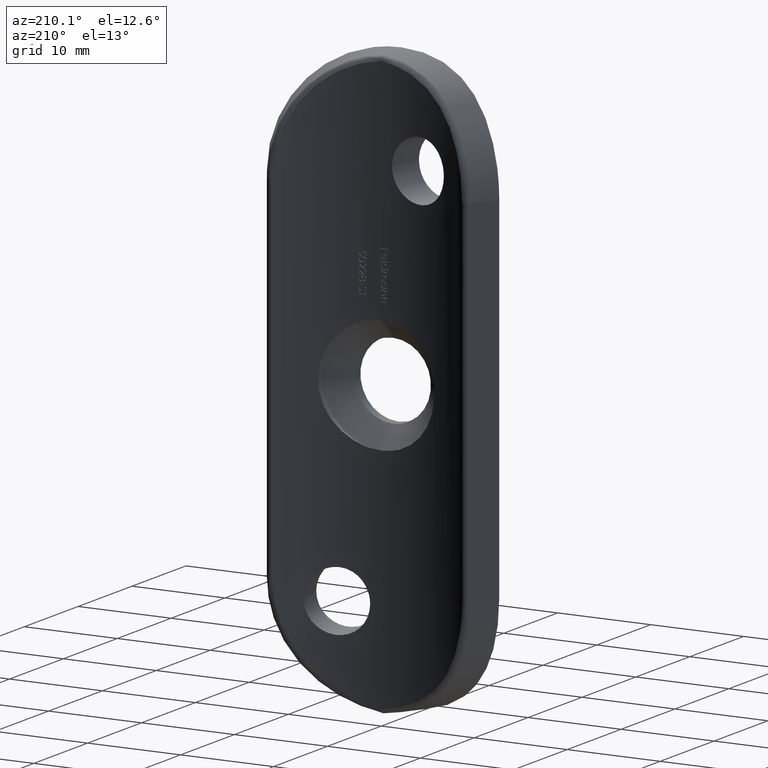
[diagram: clean part render]
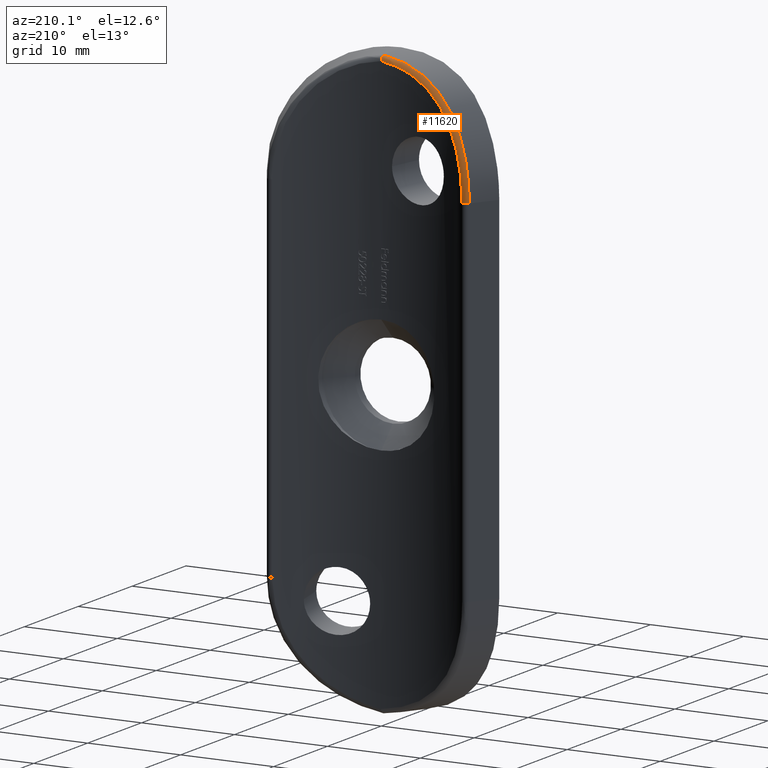
[diagram: same view with one face highlighted and labeled with its STEP entity id]
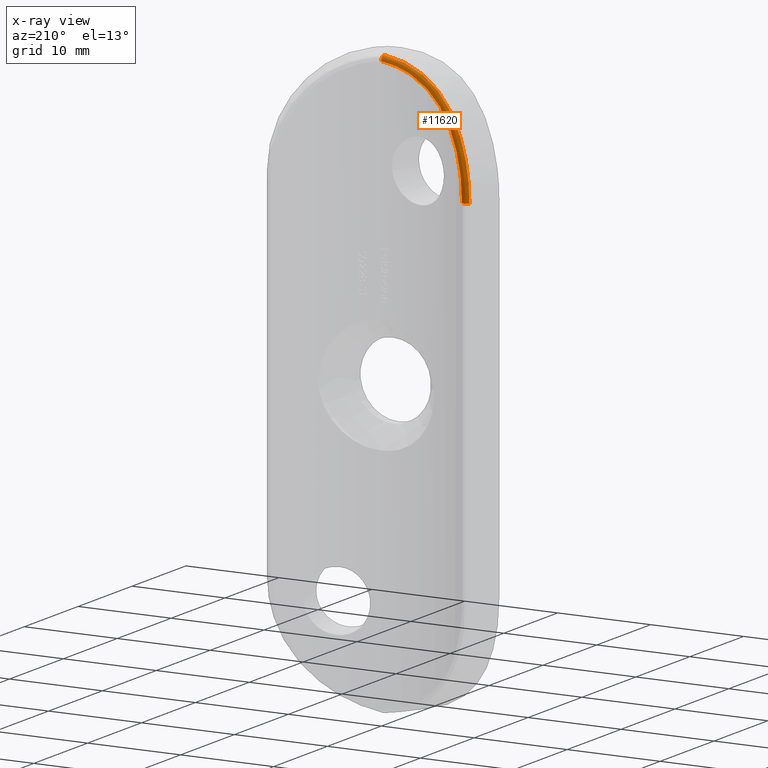
[diagram: x-ray of the same camera — body ghosted, the highlighted face saturated]
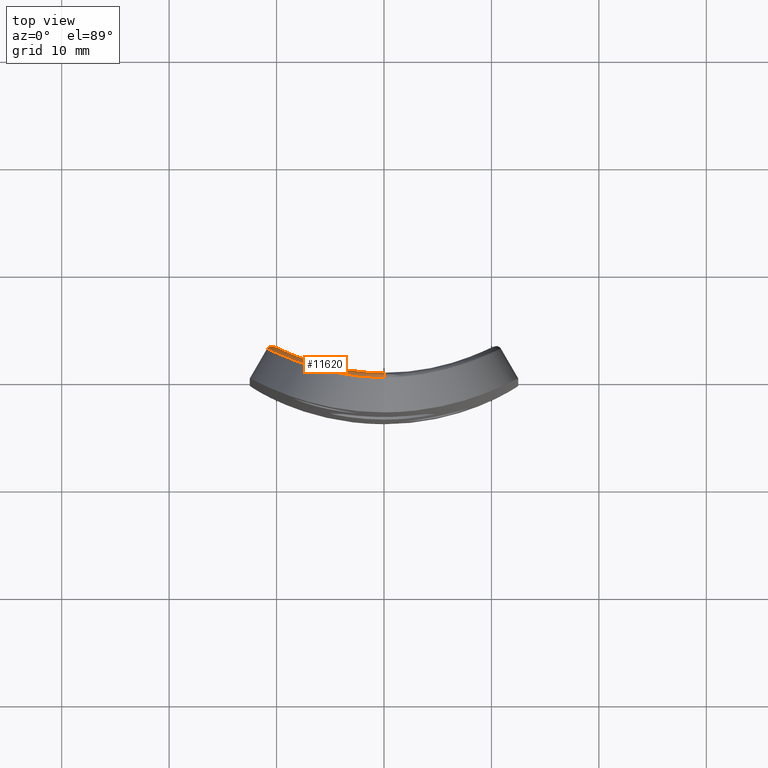
[diagram: same view with one face highlighted and labeled with its STEP entity id]
A machine part, auxiliary view. The second image highlights one B-rep face of the part: STEP entity #11620.
The next image is the same camera in x-ray: the body ghosted, the highlighted face saturated — about 0% of this face is hidden behind the body in this view.
A second angle (top view) of the same face is appended — the face is thin or edge-on in the first view.
In plain terms, the highlighted face is a freeform B-spline surface patch.
Its self-contained STEP definition (entity closure, byte-faithful):
#81 = ORIENTED_EDGE ( 'NONE', *, *, #7390, .F. ) ;
#227 = CARTESIAN_POINT ( 'NONE',  ( -3.722145375514098298, -0.1174825666102539967, 30.47237530460908417 ) ) ;
#275 = CARTESIAN_POINT ( 'NONE',  ( -10.37901783092901198, 2.163308026600583744, 22.78354983175704263 ) ) ;
#445 = CARTESIAN_POINT ( 'NONE',  ( -1.503143850898613252E-15, 3.436224069829925050E-16, 30.89198875131268451 ) ) ;
#543 = CARTESIAN_POINT ( 'NONE',  ( -10.82693343063659341, 2.401948766275856073, 20.55405604948338549 ) ) ;
#588 = CARTESIAN_POINT ( 'NONE',  ( -10.02261743220257451, 2.512910916866462507, 23.17907758015127584 ) ) ;
#628 = CARTESIAN_POINT ( 'NONE',  ( -10.15746312489223513, 2.591294358397929543, 20.49189380751278122 ) ) ;
#641 = EDGE_CURVE ( 'NONE', #11333, #8715, #2920, .T. ) ;
#662 = CARTESIAN_POINT ( 'NONE',  ( -10.25817238834203771, 2.100752320882434354, 23.18812462550034681 ) ) ;
#753 = CARTESIAN_POINT ( 'NONE',  ( -2.692327934985106364, 0.1597469888033946350, 30.30886090248851872 ) ) ;
#789 = CARTESIAN_POINT ( 'NONE',  ( -2.856489271856744061, 0.1815265113550678933, 30.25138734213638614 ) ) ;
#793 = CARTESIAN_POINT ( 'NONE',  ( -8.800024627547966105, 1.415012905178085090, 26.26619665723578478 ) ) ;
#830 = CARTESIAN_POINT ( 'NONE',  ( -9.989693022126974853, 2.501064609912782899, 21.53379502615787189 ) ) ;
#1213 = CARTESIAN_POINT ( 'NONE',  ( -9.035279559040494846, 1.517712944394773444, 25.89464071519139665 ) ) ;
#1257 = CARTESIAN_POINT ( 'NONE',  ( -8.404436157681665520, 1.249794867364261375, 26.82734984694793567 ) ) ;
#1518 = VERTEX_POINT ( 'NONE', #6655 ) ;
#1528 = CARTESIAN_POINT ( 'NONE',  ( -10.36996869859718728, 2.158599876781150506, 22.81585598824631234 ) ) ;
#1563 = CARTESIAN_POINT ( 'NONE',  ( -9.623542404332077638, 2.309654094659579382, 23.02059964041551865 ) ) ;
#1599 = CARTESIAN_POINT ( 'NONE',  ( -9.002973551663066232, 1.503446562005154474, 25.94765520731066744 ) ) ;
#1649 = CARTESIAN_POINT ( 'NONE',  ( -8.444089052977842513, 1.753289955697156621, 25.66974899898917073 ) ) ;
#1707 = CARTESIAN_POINT ( 'NONE',  ( -10.45825068306286454, 2.186452391775617787, 19.00000000000000000 ) ) ;
#1728 = CARTESIAN_POINT ( 'NONE',  ( -7.206757277130022565, 1.253595423490915017, 27.98860149675175535 ) ) ;
#1776 = CARTESIAN_POINT ( 'NONE',  ( -7.930695614902022683, 1.534729950710860935, 27.14843793214010503 ) ) ;
#1822 = CARTESIAN_POINT ( 'NONE',  ( -5.792786975466312605, 0.8030550184246234569, 29.17530994676620537 ) ) ;
#1859 = CARTESIAN_POINT ( 'NONE',  ( -9.018691429142190685, 2.010346234419009726, 24.62831743509421401 ) ) ;
#1865 = CARTESIAN_POINT ( 'NONE',  ( -0.6245340637685583562, -0.003585828924224231107, 31.28678022020730509 ) ) ;
#1906 = CARTESIAN_POINT ( 'NONE',  ( -1.412695242634778525, -0.4146772152786631915, 31.18679807518965674 ) ) ;
#2213 = CARTESIAN_POINT ( 'NONE',  ( -9.587749169269603300, 1.767324810813492686, 24.91827199489953415 ) ) ;
#2263 = CARTESIAN_POINT ( 'NONE',  ( -10.64252913189476679, 2.302479216670972662, 21.66950056038004391 ) ) ;
#2310 = CARTESIAN_POINT ( 'NONE',  ( -1.904176963450266769, -0.3623903095538353880, 31.05567707528684096 ) ) ;
#2521 = CARTESIAN_POINT ( 'NONE',  ( -9.266406216622645076, 2.130530601139056124, 24.06490579535720187 ) ) ;
#2689 = EDGE_LOOP ( 'NONE', ( #3150, #6288, #81, #8791 ) ) ;
#2734 = CARTESIAN_POINT ( 'NONE',  ( -6.406820660472107853, 0.9827181688997839171, 28.16273352284340703 ) ) ;
#2767 = CARTESIAN_POINT ( 'NONE',  ( -0.3658014390068305421, 1.407956987880481869E-15, 30.84824432416816364 ) ) ;
#2773 = CARTESIAN_POINT ( 'NONE',  ( -4.524538399175421333, 0.4847480634760920060, 29.96485310425074289 ) ) ;
#2812 = CARTESIAN_POINT ( 'NONE',  ( 0.1086331031631292271, 0.0002204369200916266285, 31.37724488065303063 ) ) ;
#2837 = VERTEX_POINT ( 'NONE', #5321 ) ;
#2855 = CARTESIAN_POINT ( 'NONE',  ( -1.805813223455826400, 0.07411591695461527962, 30.55856797363939137 ) ) ;
#2858 = CARTESIAN_POINT ( 'NONE',  ( -2.824709625130831014, 0.1760599917598440756, 30.72574562605015558 ) ) ;
#2902 = CARTESIAN_POINT ( 'NONE',  ( -4.483335441154521206, 0.4769306136709096089, 29.49993748818632611 ) ) ;
#2920 = B_SPLINE_CURVE_WITH_KNOTS ( 'NONE', 3,
 ( #4306, #6303, #12173, #4181, #2310, #9256, #227, #3364, #4341, #6213, #10252, #11255, #9174, #3275, #1257, #8183, #1213, #2213, #6168, #9095, #275, #7186, #2263, #11128, #10171, #12092 ),
 .UNSPECIFIED., .F., .F.,
 ( 4, 2, 2, 2, 2, 2, 2, 2, 2, 2, 2, 2, 4 ),
 ( 0.000000000000000000, 0.001161208984453286630, 0.002322417968906574995, 0.004644835937813149990, 0.005806044922266438355, 0.006967253906719727587, 0.009289671875626308653, 0.01045088086007959528, 0.01161208984453288018, 0.01393450781343945517, 0.01509571679789274007, 0.01625692578234602323, 0.01857934375125259302 ),
 .UNSPECIFIED. ) ;
#3150 = ORIENTED_EDGE ( 'NONE', *, *, #7189, .T. ) ;
#3275 = CARTESIAN_POINT ( 'NONE',  ( -8.172666840697736745, 1.156575065583176132, 27.12569061865148257 ) ) ;
#3364 = CARTESIAN_POINT ( 'NONE',  ( -4.735884520321929969, 0.09562791914021957773, 29.97130340277395177 ) ) ;
#3465 = CARTESIAN_POINT ( 'NONE',  ( -10.89068216193508576, 2.437456407839875272, 19.00000000000000000 ) ) ;
#3587 = CARTESIAN_POINT ( 'NONE',  ( -8.790146387079809998, 1.903471252957630755, 25.92233981367275675 ) ) ;
#3676 = CARTESIAN_POINT ( 'NONE',  ( -1.371271148152504837, 0.03144070256317526429, 31.14173367239112267 ) ) ;
#3718 = CARTESIAN_POINT ( 'NONE',  ( -4.640317153406376960, 0.07421539640497315515, 30.02191814785297908 ) ) ;
#3737 = DIRECTION ( 'NONE',  ( 0.000000000000000000, 0.000000000000000000, -1.000000000000000000 ) ) ;
#3807 = CARTESIAN_POINT ( 'NONE',  ( -3.367140335890878688, 0.2588199023110353547, 30.05539905303928450 ) ) ;
#3842 = CARTESIAN_POINT ( 'NONE',  ( -1.503143850898613252E-15, 3.436224069829925050E-16, 30.89198875131268451 ) ) ;
#3881 = CARTESIAN_POINT ( 'NONE',  ( -9.302536356113341398, 2.148258411087696107, 23.97361021490491240 ) ) ;
#3925 = CARTESIAN_POINT ( 'NONE',  ( -8.507335449680526906, 1.780933461392925077, 25.56317099932303449 ) ) ;
#4181 = CARTESIAN_POINT ( 'NONE',  ( -1.526829681125244198, -0.3965501718721306523, 31.14486316553924894 ) ) ;
#4306 = CARTESIAN_POINT ( 'NONE',  ( 1.149669547333050099E-15, -0.4673406116063780757, 31.39421042555791530 ) ) ;
#4341 = CARTESIAN_POINT ( 'NONE',  ( -5.065702197598429990, 0.1728216056635637488, 29.78806897644023621 ) ) ;
#4447 = CARTESIAN_POINT ( 'NONE',  ( -10.63817365423436456, 2.300142372996860196, 21.69249099678065917 ) ) ;
#4502 =( BOUNDED_SURFACE ( )  B_SPLINE_SURFACE ( 3, 2, ( 
 ( #3465, #11477, #12389 ),
 ( #6575, #6526, #10361 ),
 ( #543, #5610, #628 ),
 ( #4447, #7626, #5486 ),
 ( #8444, #6619, #12346 ),
 ( #1528, #9486, #6452 ),
 ( #662, #588, #1563 ),
 ( #5439, #11436, #2521 ),
 ( #7547, #12312, #7588 ),
 ( #1599, #3587, #1649 ),
 ( #793, #7852, #7719 ),
 ( #5658, #5829, #9567 ),
 ( #7672, #1776, #10655 ),
 ( #7802, #1728, #9731 ),
 ( #8648, #6839, #2734 ),
 ( #11685, #1822, #6658 ),
 ( #9690, #4754, #11728 ),
 ( #6705, #8682, #11598 ),
 ( #3718, #2773, #12516 ),
 ( #10699, #8726, #3807 ),
 ( #4710, #2858, #753 ),
 ( #1906, #3676, #4830 ),
 ( #4656, #1865, #5735 ),
 ( #5695, #2812, #4788 ) ),
 .UNSPECIFIED., .F., .F., .T. ) 
 B_SPLINE_SURFACE_WITH_KNOTS ( ( 4, 2, 2, 2, 2, 2, 2, 2, 2, 2, 2, 4 ),
 ( 3, 3 ),
 ( 0.000000000000000000, 0.002223879156777140102, 0.003335818735165710369, 0.004447758313554280203, 0.006671637470331420738, 0.007783577048719990572, 0.008895516627108560406, 0.01111939578388570007, 0.01223133536227427078, 0.01334327494066284148, 0.01556715409743998114, 0.01779103325421712081 ),
 ( 0.000000000000000000, 1.000000000000000000 ),
 .UNSPECIFIED. ) 
 GEOMETRIC_REPRESENTATION_ITEM ( )  RATIONAL_B_SPLINE_SURFACE ( (
 ( 1.000000000000000000, 0.7152067794192036310, 1.000000000000000000),
 ( 1.000000000000000000, 0.7152026555542936315, 1.000000000000000000),
 ( 1.000000000000000000, 0.7163087218244311716, 1.000000000000000000),
 ( 1.000000000000000000, 0.7193575847382822630, 1.000000000000000000),
 ( 1.000000000000000000, 0.7206045121275554965, 1.000000000000000000),
 ( 1.000000000000000000, 0.7234917940115832558, 1.000000000000000000),
 ( 1.000000000000000000, 0.7251422474811400898, 1.000000000000000000),
 ( 1.000000000000000000, 0.7304542732207562894, 1.000000000000000000),
 ( 1.000000000000000000, 0.7344810157246716154, 1.000000000000000000),
 ( 1.000000000000000000, 0.7404940515638996912, 1.000000000000000000),
 ( 1.000000000000000000, 0.7424932332932062673, 1.000000000000000000),
 ( 1.000000000000000000, 0.7463409901879426434, 1.000000000000000000),
 ( 1.000000000000000000, 0.7481787648772402211, 1.000000000000000000),
 ( 1.000000000000000000, 0.7531368888692631103, 1.000000000000000000),
 ( 1.000000000000000000, 0.7557433133660209634, 1.000000000000000000),
 ( 1.000000000000000000, 0.7578513671500343163, 1.000000000000000000),
 ( 1.000000000000000000, 0.7582532660983138939, 1.000000000000000000),
 ( 1.000000000000000000, 0.7583231197191486750, 1.000000000000000000),
 ( 1.000000000000000000, 0.7579947729588659699, 1.000000000000000000),
 ( 1.000000000000000000, 0.7558344869759966445, 1.000000000000000000),
 ( 1.000000000000000000, 0.7528277530502420767, 1.000000000000000000),
 ( 1.000000000000000000, 0.7432499818475333253, 1.000000000000000000),
 ( 1.000000000000000000, 0.7367541512354522926, 1.000000000000000000),
 ( 1.000000000000000000, 0.7287472103858306793, 1.000000000000000000) ) ) 
 REPRESENTATION_ITEM ( '' )  SURFACE ( )  );
#4656 = CARTESIAN_POINT ( 'NONE',  ( -0.6506570822281672051, -0.4609428060838244301, 31.32488532440849127 ) ) ;
#4710 = CARTESIAN_POINT ( 'NONE',  ( -2.902561889445783638, -0.2513129673027021949, 30.78006344034141506 ) ) ;
#4754 = CARTESIAN_POINT ( 'NONE',  ( -5.484793050253097491, 0.7178864050661466489, 29.38924087979324895 ) ) ;
#4783 = CARTESIAN_POINT ( 'NONE',  ( -9.747706822753684719, 2.373647788680583126, 22.59276625280698170 ) ) ;
#4787 = EDGE_CURVE ( 'NONE', #1518, #2837, #10017, .T. ) ;
#4788 = CARTESIAN_POINT ( 'NONE',  ( 0.1581763936741363841, 0.0005900971634521627596, 30.91002881888936926 ) ) ;
#4830 = CARTESIAN_POINT ( 'NONE',  ( -1.283110736329449386, 0.02703366736287738520, 30.69932615242131391 ) ) ;
#4914 = CARTESIAN_POINT ( 'NONE',  ( -8.322522062034710899, 1.700703140498017296, 25.86687294132988768 ) ) ;
#5264 = CARTESIAN_POINT ( 'NONE',  ( 1.348642466554699619E-12, -1.116389424481167847E-15, 31.01719971224632744 ) ) ;
#5321 = CARTESIAN_POINT ( 'NONE',  ( -1.503143850898613252E-15, 3.436224069829925050E-16, 30.89198875131268451 ) ) ;
#5439 = CARTESIAN_POINT ( 'NONE',  ( -9.877903268781704327, 1.908865879479665129, 24.27594353669539018 ) ) ;
#5486 = CARTESIAN_POINT ( 'NONE',  ( -9.980297429979364310, 2.496038951428444896, 21.58479135690506467 ) ) ;
#5610 = CARTESIAN_POINT ( 'NONE',  ( -10.58284720286918024, 2.823434808774624827, 20.55048473156582034 ) ) ;
#5658 = CARTESIAN_POINT ( 'NONE',  ( -8.360933311543435664, 1.232092917468072146, 26.88513091381344111 ) ) ;
#5695 = CARTESIAN_POINT ( 'NONE',  ( 0.1090529744508627469, -0.4687169864780459938, 31.40628001967643002 ) ) ;
#5735 = CARTESIAN_POINT ( 'NONE',  ( -0.5616976621041872564, -0.004781141119333885692, 30.83188913527758857 ) ) ;
#5829 = CARTESIAN_POINT ( 'NONE',  ( -8.161110873567407609, 1.629371636888111041, 26.85210269360071678 ) ) ;
#5899 = CARTESIAN_POINT ( 'NONE',  ( -6.522787611881756931, 1.020136897116859842, 28.05743873491669049 ) ) ;
#6168 = CARTESIAN_POINT ( 'NONE',  ( -9.895329955964312418, 1.917468678574771657, 24.23304662918588193 ) ) ;
#6213 = CARTESIAN_POINT ( 'NONE',  ( -5.708646956014399088, 0.3375534250088046972, 29.38719145087421580 ) ) ;
#6288 = ORIENTED_EDGE ( 'NONE', *, *, #4787, .F. ) ;
#6303 = CARTESIAN_POINT ( 'NONE',  ( -0.3857525109607254921, -0.4615508653606031353, 31.35014733435442125 ) ) ;
#6452 = CARTESIAN_POINT ( 'NONE',  ( -9.728513467866683584, 2.363702262088782202, 22.66322174867684325 ) ) ;
#6526 = CARTESIAN_POINT ( 'NONE',  ( -10.64539652685905402, 2.860036218014518905, 19.78248408817341186 ) ) ;
#6575 = CARTESIAN_POINT ( 'NONE',  ( -10.89068216192531580, 2.437456407856706697, 19.78317630828706797 ) ) ;
#6619 = CARTESIAN_POINT ( 'NONE',  ( -10.31923863127568630, 2.674818347301767929, 22.06373278200256749 ) ) ;
#6655 = CARTESIAN_POINT ( 'NONE',  ( -10.21727716501994010, 2.624552567080326693, 19.00000000000000000 ) ) ;
#6658 = CARTESIAN_POINT ( 'NONE',  ( -5.558851619202429539, 0.7396571979087462889, 28.81932357322804350 ) ) ;
#6700 = CARTESIAN_POINT ( 'NONE',  ( -1.447889428727310301, 0.04643533760782532493, 30.64614599724809096 ) ) ;
#6705 = CARTESIAN_POINT ( 'NONE',  ( -4.973601509702893608, 0.1507637063357829821, 29.84080540090397804 ) ) ;
#6750 = CARTESIAN_POINT ( 'NONE',  ( -4.794540037725573356, 0.5469161032904806818, 29.32145114474685599 ) ) ;
#6791 = CARTESIAN_POINT ( 'NONE',  ( -9.918815037941767443, 2.463233092923673873, 21.88857879488332969 ) ) ;
#6839 = CARTESIAN_POINT ( 'NONE',  ( -6.672239978941452598, 1.066132428140446287, 28.49617008436290178 ) ) ;
#7186 = CARTESIAN_POINT ( 'NONE',  ( -10.56531761606724551, 2.261153944151151229, 22.04284560907184343 ) ) ;
#7189 = EDGE_CURVE ( 'NONE', #11333, #2837, #9131, .T. ) ;
#7390 = EDGE_CURVE ( 'NONE', #8715, #1518, #10250, .T. ) ;
#7508 = CARTESIAN_POINT ( 'NONE',  ( -10.89068216193508398, 2.437456407839876160, 19.00000000000000000 ) ) ;
#7547 = CARTESIAN_POINT ( 'NONE',  ( -9.565072202388497757, 1.756490763747495798, 24.96562210051425978 ) ) ;
#7588 = CARTESIAN_POINT ( 'NONE',  ( -8.972512613868962816, 1.988474726841717999, 24.72699721655183325 ) ) ;
#7626 = CARTESIAN_POINT ( 'NONE',  ( -10.39655415191130139, 2.718138352962867987, 21.68835983927413480 ) ) ;
#7672 = CARTESIAN_POINT ( 'NONE',  ( -8.125609610752885459, 1.138012428159897560, 27.18397260105661317 ) ) ;
#7712 = CARTESIAN_POINT ( 'NONE',  ( -5.400682064243613745, 0.6970704078945602067, 28.93120263732642883 ) ) ;
#7719 = CARTESIAN_POINT ( 'NONE',  ( -8.253249010102859273, 1.671208202351837313, 25.97554879105007331 ) ) ;
#7797 = CARTESIAN_POINT ( 'NONE',  ( -7.922224594807326881, 1.534667331634883780, 26.45792131482191678 ) ) ;
#7802 = CARTESIAN_POINT ( 'NONE',  ( -7.384139858635091258, 0.8567638779313206943, 28.03372606786246024 ) ) ;
#7852 = CARTESIAN_POINT ( 'NONE',  ( -8.591259451613248999, 1.813938367318012279, 26.23841027205733312 ) ) ;
#7886 = CARTESIAN_POINT ( 'NONE',  ( -9.646848549150066177, 2.321577843298347155, 22.94391112931254284 ) ) ;
#8086 = FACE_OUTER_BOUND ( 'NONE', #2689, .T. ) ;
#8183 = CARTESIAN_POINT ( 'NONE',  ( -8.835835642423363723, 1.430437285731798402, 26.21146494651176795 ) ) ;
#8407 = AXIS2_PLACEMENT_3D ( 'NONE', #1707, #3737, #10631 ) ;
#8444 = CARTESIAN_POINT ( 'NONE',  ( -10.55959880564701692, 2.258109206893668564, 22.06897852909821367 ) ) ;
#8648 = CARTESIAN_POINT ( 'NONE',  ( -6.838396362868158107, 0.6686945894241415056, 28.54451408628327158 ) ) ;
#8678 = CARTESIAN_POINT ( 'NONE',  ( -0.7286119910245005826, 0.009464228331493915528, 30.79075216987417818 ) ) ;
#8682 = CARTESIAN_POINT ( 'NONE',  ( -4.850144638428981914, 0.5586397199921599999, 29.78420083730167178 ) ) ;
#8715 = VERTEX_POINT ( 'NONE', #7508 ) ;
#8726 = CARTESIAN_POINT ( 'NONE',  ( -3.524677850184810612, 0.2833768401244474155, 30.45914044859115677 ) ) ;
#8765 = CARTESIAN_POINT ( 'NONE',  ( -3.526079598004436377, 0.2851639130825236457, 29.98832999355698092 ) ) ;
#8791 = ORIENTED_EDGE ( 'NONE', *, *, #641, .F. ) ;
#8842 = CARTESIAN_POINT ( 'NONE',  ( -10.21727716501994188, 2.624552567080327137, 19.73620466055769995 ) ) ;
#8987 = CARTESIAN_POINT ( 'NONE',  ( 1.149669547333050099E-15, -0.4673406116063780757, 31.39421042555791530 ) ) ;
#9095 = CARTESIAN_POINT ( 'NONE',  ( -10.26920461469040191, 2.106422435699066842, 23.15280607631129328 ) ) ;
#9131 = B_SPLINE_CURVE_WITH_KNOTS ( 'NONE', 3,
 ( #10299, #12095, #9259, #11171, #5264, #445 ),
 .UNSPECIFIED., .F., .F.,
 ( 4, 2, 4 ),
 ( 1.138412281109779656E-18, 0.0003756173916389001486, 0.0007512347832777991046 ),
 .UNSPECIFIED. ) ;
#9174 = CARTESIAN_POINT ( 'NONE',  ( -7.442532452984153224, 0.8776886570223532136, 27.97428042536247972 ) ) ;
#9256 = CARTESIAN_POINT ( 'NONE',  ( -3.014047091458882832, -0.2349810422590900560, 30.74181323010165201 ) ) ;
#9259 = CARTESIAN_POINT ( 'NONE',  ( 4.995643591970328617E-15, -0.2200873629007176757, 31.32771177860053768 ) ) ;
#9486 = CARTESIAN_POINT ( 'NONE',  ( -10.13252524696622991, 2.572338867208334712, 22.80833347460347582 ) ) ;
#9567 = CARTESIAN_POINT ( 'NONE',  ( -7.840213225772606265, 1.501754269146852172, 26.56972567715718725 ) ) ;
#9687 = CARTESIAN_POINT ( 'NONE',  ( -5.691418550363424700, 0.7762108521757218327, 28.72204896429289178 ) ) ;
#9690 = CARTESIAN_POINT ( 'NONE',  ( -5.623719676112335364, 0.3146233312382439862, 29.44370539591608704 ) ) ;
#9731 = CARTESIAN_POINT ( 'NONE',  ( -6.920846379000097137, 1.155342520142050411, 27.67237702540655420 ) ) ;
#9822 = CARTESIAN_POINT ( 'NONE',  ( -10.15990486692688499, 2.592664384954251666, 20.46153034708670404 ) ) ;
#10017 = B_SPLINE_CURVE_WITH_KNOTS ( 'NONE', 3,
 ( #12636, #8842, #9822, #830, #6791, #4783, #7886, #3881, #1859, #3925, #4914, #7797, #11801, #10649, #5899, #9687, #7712, #6750, #2902, #8765, #789, #2855, #6700, #8678, #2767, #3842 ),
 .UNSPECIFIED., .F., .F.,
 ( 4, 2, 2, 2, 2, 2, 2, 2, 2, 2, 2, 2, 4 ),
 ( 0.000000000000000000, 0.002178878328597691136, 0.003268317492896541908, 0.004357756657195391813, 0.006536634985793083816, 0.007626074150091923312, 0.008715513314390762808, 0.01089439164298844874, 0.01198383080728728650, 0.01307326997158612253, 0.01525214830018380499, 0.01634158746448264796, 0.01743102662878148745 ),
 .UNSPECIFIED. ) ;
#10171 = CARTESIAN_POINT ( 'NONE',  ( -10.89068216193508398, 2.437456407839873052, 19.77640825180817785 ) ) ;
#10250 = CIRCLE ( 'NONE', #8407, 0.5000000000000004441 ) ;
#10252 = CARTESIAN_POINT ( 'NONE',  ( -6.018685622804218482, 0.4243408902976382180, 29.17129357762806663 ) ) ;
#10299 = CARTESIAN_POINT ( 'NONE',  ( 1.149669547333050099E-15, -0.4673406116063780757, 31.39421042555791530 ) ) ;
#10361 = CARTESIAN_POINT ( 'NONE',  ( -10.21727716425922949, 2.624552566661903175, 19.75184925594928131 ) ) ;
#10631 = DIRECTION ( 'NONE',  ( -1.000000000000000000, 0.000000000000000000, 0.000000000000000000 ) ) ;
#10649 = CARTESIAN_POINT ( 'NONE',  ( -7.025474475944415431, 1.192049346665549292, 27.56340776577283691 ) ) ;
#10655 = CARTESIAN_POINT ( 'NONE',  ( -7.618786494921709007, 1.414760694739257918, 26.85661369688505573 ) ) ;
#10699 = CARTESIAN_POINT ( 'NONE',  ( -3.616651545252090649, -0.1363430762049901157, 30.51604067973194390 ) ) ;
#11128 = CARTESIAN_POINT ( 'NONE',  ( -10.82802512140448670, 2.402563072010277523, 20.54065016212287986 ) ) ;
#11171 = CARTESIAN_POINT ( 'NONE',  ( 8.016558609028612164E-15, -0.04911781460103969293, 31.14347841891390445 ) ) ;
#11255 = CARTESIAN_POINT ( 'NONE',  ( -6.904985649179108620, 0.6907721564610237452, 28.48531783296846953 ) ) ;
#11333 = VERTEX_POINT ( 'NONE', #8987 ) ;
#11436 = CARTESIAN_POINT ( 'NONE',  ( -9.649543704127038879, 2.316542874120862017, 24.25942143510918925 ) ) ;
#11477 = CARTESIAN_POINT ( 'NONE',  ( -10.64539652765726885, 2.860036218474112157, 19.00000000000000000 ) ) ;
#11598 = CARTESIAN_POINT ( 'NONE',  ( -4.648289133772044224, 0.5134610445321791117, 29.40717318518424861 ) ) ;
#11620 = ADVANCED_FACE ( 'NONE', ( #8086 ), #4502, .T. ) ;
#11685 = CARTESIAN_POINT ( 'NONE',  ( -5.938876049070447749, 0.4015867507337911868, 29.22846205545184972 ) ) ;
#11728 = CARTESIAN_POINT ( 'NONE',  ( -5.261644445543888438, 0.6609011016571592068, 29.02595717976301870 ) ) ;
#11801 = CARTESIAN_POINT ( 'NONE',  ( -7.706419936799038695, 1.448799099869658935, 26.74525593213851948 ) ) ;
#12092 = CARTESIAN_POINT ( 'NONE',  ( -10.89068216193508398, 2.437456407839876160, 19.00000000000000000 ) ) ;
#12095 = CARTESIAN_POINT ( 'NONE',  ( 2.262082539738335671E-14, -0.3406001812796428108, 31.38587980044411196 ) ) ;
#12173 = CARTESIAN_POINT ( 'NONE',  ( -0.7683342868648515012, -0.4460393953555595314, 31.29188355289227275 ) ) ;
#12312 = CARTESIAN_POINT ( 'NONE',  ( -9.343004030307156427, 2.161107649956812260, 24.94486063803077514 ) ) ;
#12346 = CARTESIAN_POINT ( 'NONE',  ( -9.906542973313836598, 2.456721389159553404, 21.94621938797390115 ) ) ;
#12389 = CARTESIAN_POINT ( 'NONE',  ( -10.21727716501994365, 2.624552567080327581, 19.00000000000000000 ) ) ;
#12516 = CARTESIAN_POINT ( 'NONE',  ( -4.333724846767865735, 0.4450850776529620689, 29.58104142169055351 ) ) ;
#12636 = CARTESIAN_POINT ( 'NONE',  ( -10.21727716501994010, 2.624552567080326693, 19.00000000000000000 ) ) ;